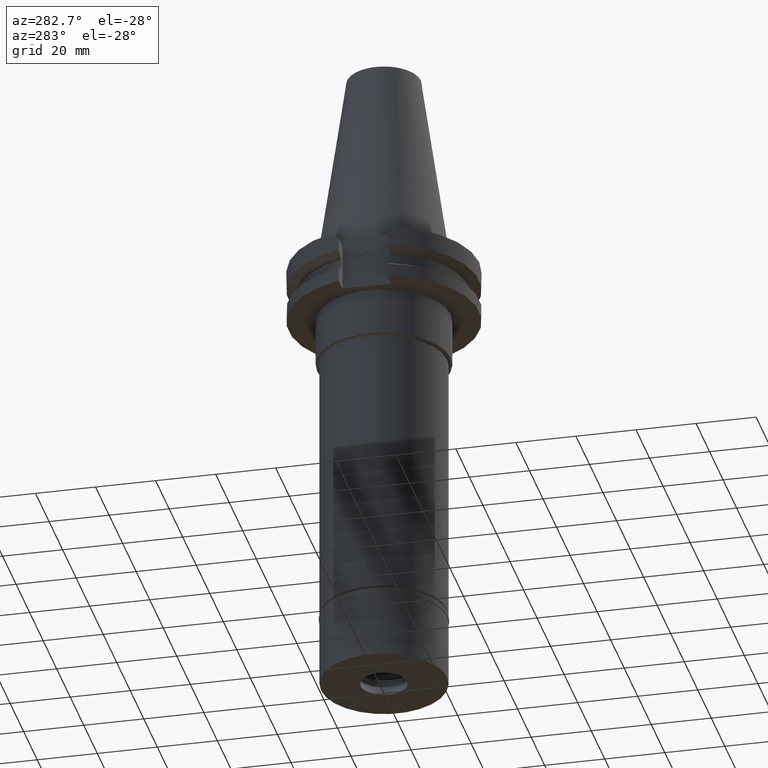
[diagram: clean part render]
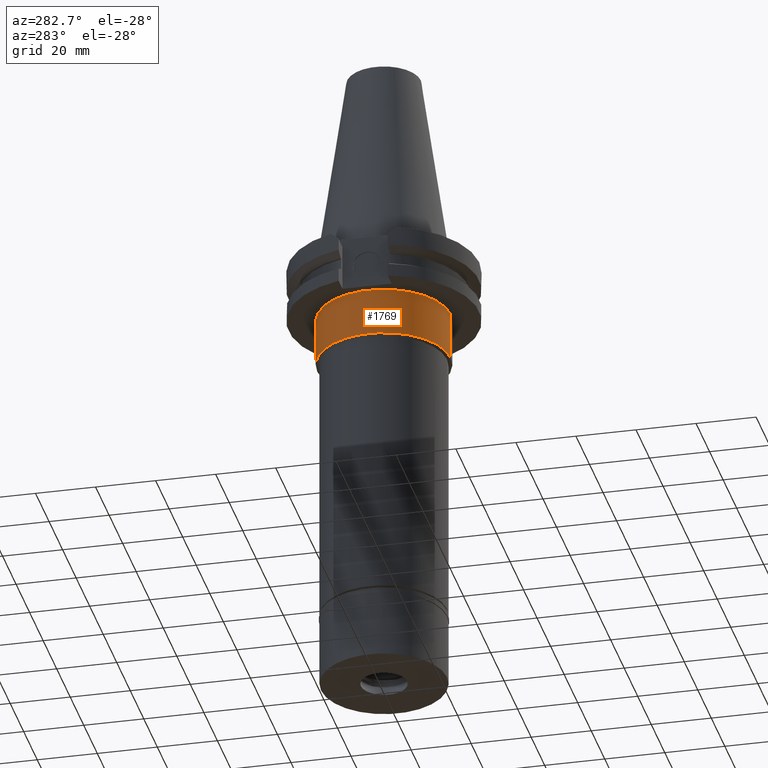
[diagram: same view with one face highlighted and labeled with its STEP entity id]
A machine part, auxiliary view. The second image highlights one B-rep face of the part: STEP entity #1769.
In plain terms, the highlighted cylindrical surface (partial cylindrical patch) has radius 22.225 mm, axis along (0, 0, -1).
Its self-contained STEP definition (entity closure, byte-faithful):
#42 = DIRECTION ( 'NONE',  ( 0.0000000000000000000, 0.0000000000000000000, -1.000000000000000000 ) ) ;
#47 = VECTOR ( 'NONE', #42, 1000.000000000000000 ) ;
#62 = AXIS2_PLACEMENT_3D ( 'NONE', #1103, #2366, #2632 ) ;
#123 = CYLINDRICAL_SURFACE ( 'NONE', #2865, 22.22500000000000142 ) ;
#241 = ORIENTED_EDGE ( 'NONE', *, *, #2940, .T. ) ;
#312 = CARTESIAN_POINT ( 'NONE',  ( 0.0000000000000000000, 2.190984972184999566E-14, -35.00000000000000000 ) ) ;
#391 = CIRCLE ( 'NONE', #62, 22.22500000000000142 ) ;
#398 = VERTEX_POINT ( 'NONE', #409 ) ;
#404 = DIRECTION ( 'NONE',  ( 0.0000000000000000000, 0.0000000000000000000, -1.000000000000000000 ) ) ;
#409 = CARTESIAN_POINT ( 'NONE',  ( 0.0000000000000000000, 22.22500000000000142, -35.00000000000000000 ) ) ;
#421 = VERTEX_POINT ( 'NONE', #2354 ) ;
#631 = EDGE_CURVE ( 'NONE', #421, #398, #1377, .T. ) ;
#729 = CARTESIAN_POINT ( 'NONE',  ( 0.0000000000000000000, -22.22500000000000142, -19.05000000000000071 ) ) ;
#941 = DIRECTION ( 'NONE',  ( 0.0000000000000000000, -1.000000000000000000, 0.0000000000000000000 ) ) ;
#965 = DIRECTION ( 'NONE',  ( 0.0000000000000000000, 0.0000000000000000000, -1.000000000000000000 ) ) ;
#1013 = CARTESIAN_POINT ( 'NONE',  ( 0.0000000000000000000, -22.22500000000000142, -35.00000000000000000 ) ) ;
#1103 = CARTESIAN_POINT ( 'NONE',  ( 0.0000000000000000000, 2.190984972184999566E-14, -19.05000000000000071 ) ) ;
#1121 = DIRECTION ( 'NONE',  ( 0.0000000000000000000, 0.0000000000000000000, 1.000000000000000000 ) ) ;
#1176 = EDGE_LOOP ( 'NONE', ( #1970, #2477, #241, #2774 ) ) ;
#1187 = CARTESIAN_POINT ( 'NONE',  ( 0.0000000000000000000, 2.190984972184999566E-14, 78.90749999999999886 ) ) ;
#1377 = LINE ( 'NONE', #2365, #47 ) ;
#1513 = LINE ( 'NONE', #1976, #2334 ) ;
#1769 = ADVANCED_FACE ( 'NONE', ( #2690 ), #123, .T. ) ;
#1826 = EDGE_CURVE ( 'NONE', #398, #3275, #1955, .T. ) ;
#1955 = CIRCLE ( 'NONE', #2382, 22.22500000000000142 ) ;
#1970 = ORIENTED_EDGE ( 'NONE', *, *, #1826, .T. ) ;
#1976 = CARTESIAN_POINT ( 'NONE',  ( 0.0000000000000000000, -22.22500000000000142, -19.05000000000000071 ) ) ;
#2164 = VERTEX_POINT ( 'NONE', #729 ) ;
#2334 = VECTOR ( 'NONE', #965, 1000.000000000000000 ) ;
#2354 = CARTESIAN_POINT ( 'NONE',  ( 0.0000000000000000000, 22.22500000000000142, -19.05000000000000071 ) ) ;
#2365 = CARTESIAN_POINT ( 'NONE',  ( 0.0000000000000000000, 22.22500000000000142, -19.05000000000000071 ) ) ;
#2366 = DIRECTION ( 'NONE',  ( 0.0000000000000000000, 0.0000000000000000000, -1.000000000000000000 ) ) ;
#2382 = AXIS2_PLACEMENT_3D ( 'NONE', #312, #1121, #2615 ) ;
#2477 = ORIENTED_EDGE ( 'NONE', *, *, #2776, .F. ) ;
#2615 = DIRECTION ( 'NONE',  ( 0.0000000000000000000, 1.000000000000000000, 0.0000000000000000000 ) ) ;
#2632 = DIRECTION ( 'NONE',  ( 0.0000000000000000000, -1.000000000000000000, 0.0000000000000000000 ) ) ;
#2690 = FACE_OUTER_BOUND ( 'NONE', #1176, .T. ) ;
#2774 = ORIENTED_EDGE ( 'NONE', *, *, #631, .T. ) ;
#2776 = EDGE_CURVE ( 'NONE', #2164, #3275, #1513, .T. ) ;
#2865 = AXIS2_PLACEMENT_3D ( 'NONE', #1187, #404, #941 ) ;
#2940 = EDGE_CURVE ( 'NONE', #2164, #421, #391, .T. ) ;
#3275 = VERTEX_POINT ( 'NONE', #1013 ) ;